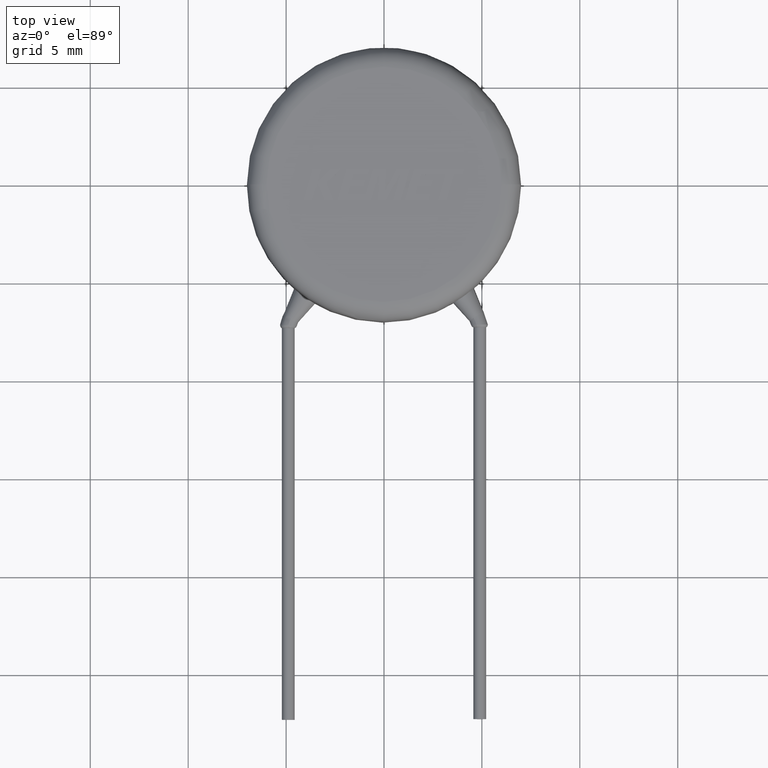
[diagram: clean part render]
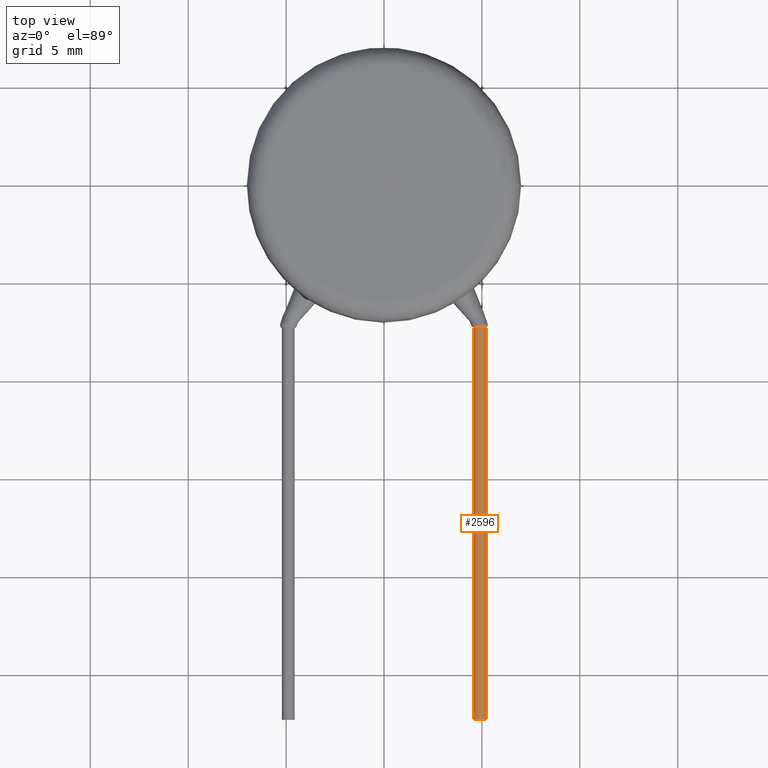
[diagram: same view with one face highlighted and labeled with its STEP entity id]
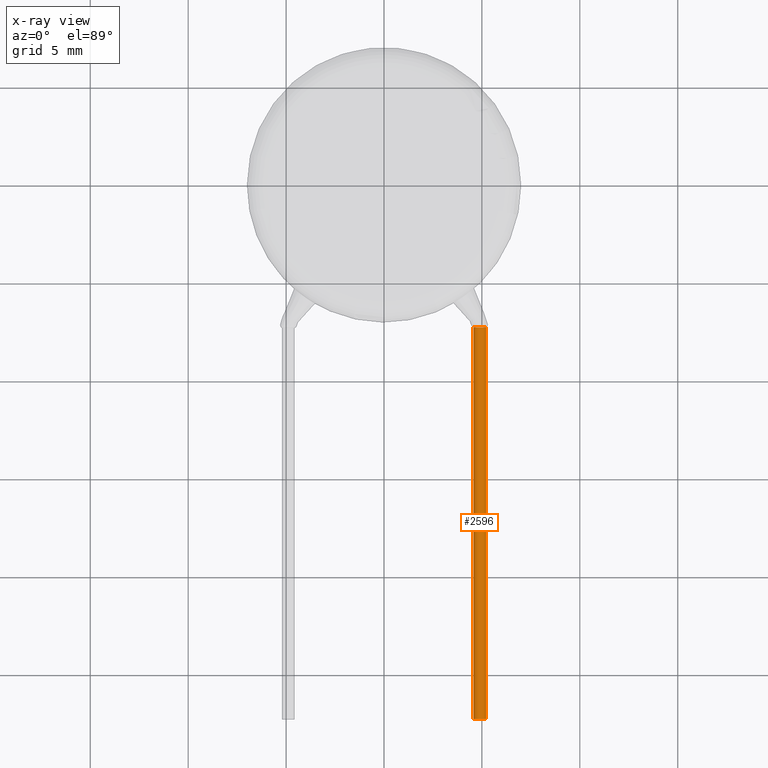
[diagram: x-ray of the same camera — body ghosted, the highlighted face saturated]
A machine part, top view. The second image highlights one B-rep face of the part: STEP entity #2596.
The next image is the same camera in x-ray: the body ghosted, the highlighted face saturated — about 0% of this face is hidden behind the body in this view.
In plain terms, the highlighted cylindrical surface (edge-blend (fillet) strip) has radius 0.325 mm, axis along (0, -1, 0).
Its self-contained STEP definition (entity closure, byte-faithful):
#15 = DIRECTION ( 'NONE',  ( 0.9994723878432226800, 0.0000000000000000000, 0.03247993132638519300 ) ) ;
#225 = DIRECTION ( 'NONE',  ( 1.301042606982605600E-016, -1.000000000000000000, 0.0000000000000000000 ) ) ;
#336 = CARTESIAN_POINT ( 'NONE',  ( 4.766913682338882900, -7.292392426571105100, 3.848838045880926400 ) ) ;
#375 = EDGE_LOOP ( 'NONE', ( #677, #4048, #666, #1076, #2970 ) ) ;
#666 = ORIENTED_EDGE ( 'NONE', *, *, #1841, .T. ) ;
#677 = ORIENTED_EDGE ( 'NONE', *, *, #3409, .T. ) ;
#678 = AXIS2_PLACEMENT_3D ( 'NONE', #1339, #2333, #15 ) ;
#718 = CIRCLE ( 'NONE', #901, 0.3249999999999997900 ) ;
#723 = DIRECTION ( 'NONE',  ( 1.000000000000000000, 0.0000000000000000000, 0.0000000000000000000 ) ) ;
#727 = VERTEX_POINT ( 'NONE', #3855 ) ;
#735 = AXIS2_PLACEMENT_3D ( 'NONE', #3034, #1729, #4037 ) ;
#830 = VECTOR ( 'NONE', #225, 1000.000000000000000 ) ;
#901 = AXIS2_PLACEMENT_3D ( 'NONE', #1410, #2424, #2408 ) ;
#953 = DIRECTION ( 'NONE',  ( 1.301042606982605600E-016, -1.000000000000000000, 0.0000000000000000000 ) ) ;
#1013 = LINE ( 'NONE', #2636, #4029 ) ;
#1020 = CARTESIAN_POINT ( 'NONE',  ( 5.214012070387052100, -7.292392426571105100, 3.547645443654348500 ) ) ;
#1049 = LINE ( 'NONE', #3524, #830 ) ;
#1076 = ORIENTED_EDGE ( 'NONE', *, *, #3128, .F. ) ;
#1120 = VERTEX_POINT ( 'NONE', #3645 ) ;
#1257 = VERTEX_POINT ( 'NONE', #1960 ) ;
#1339 = CARTESIAN_POINT ( 'NONE',  ( 4.889012070387053700, -27.29239242657110500, 3.547645443654348500 ) ) ;
#1410 = CARTESIAN_POINT ( 'NONE',  ( 4.889012070387051900, -7.292392426571105100, 3.547645443654348500 ) ) ;
#1729 = DIRECTION ( 'NONE',  ( -0.0000000000000000000, -1.000000000000000000, -0.0000000000000000000 ) ) ;
#1841 = EDGE_CURVE ( 'NONE', #1257, #727, #1013, .T. ) ;
#1960 = CARTESIAN_POINT ( 'NONE',  ( 4.564012070387052600, -7.292392426571105100, 3.547645443654348500 ) ) ;
#1977 = FACE_OUTER_BOUND ( 'NONE', #375, .T. ) ;
#2333 = DIRECTION ( 'NONE',  ( 5.074066167232159500E-017, -1.000000000000000000, 1.387778780781445400E-017 ) ) ;
#2408 = DIRECTION ( 'NONE',  ( 0.0000000000000000000, 0.0000000000000000000, 1.000000000000000000 ) ) ;
#2424 = DIRECTION ( 'NONE',  ( -0.0000000000000000000, -1.000000000000000000, -0.0000000000000000000 ) ) ;
#2596 = ADVANCED_FACE ( 'NONE', ( #1977 ), #3459, .T. ) ;
#2636 = CARTESIAN_POINT ( 'NONE',  ( 4.564012070387051700, -7.292392426571106000, 3.547645443654348500 ) ) ;
#2711 = EDGE_CURVE ( 'NONE', #3287, #1120, #1049, .T. ) ;
#2867 = CIRCLE ( 'NONE', #678, 0.3249999999999999600 ) ;
#2961 = DIRECTION ( 'NONE',  ( 1.301042606982605600E-016, -1.000000000000000000, 0.0000000000000000000 ) ) ;
#2970 = ORIENTED_EDGE ( 'NONE', *, *, #2711, .F. ) ;
#3034 = CARTESIAN_POINT ( 'NONE',  ( 4.889012070387051900, -7.292392426571105100, 3.547645443654348500 ) ) ;
#3062 = VERTEX_POINT ( 'NONE', #336 ) ;
#3128 = EDGE_CURVE ( 'NONE', #1120, #727, #2867, .T. ) ;
#3241 = CARTESIAN_POINT ( 'NONE',  ( 4.889012070387051000, -7.292392426571106000, 3.547645443654348500 ) ) ;
#3287 = VERTEX_POINT ( 'NONE', #1020 ) ;
#3409 = EDGE_CURVE ( 'NONE', #3287, #3062, #718, .T. ) ;
#3459 = CYLINDRICAL_SURFACE ( 'NONE', #3598, 0.3249999999999997900 ) ;
#3524 = CARTESIAN_POINT ( 'NONE',  ( 5.214012070387051200, -7.292392426571106000, 3.547645443654348500 ) ) ;
#3527 = EDGE_CURVE ( 'NONE', #3062, #1257, #3544, .T. ) ;
#3544 = CIRCLE ( 'NONE', #735, 0.3249999999999997900 ) ;
#3598 = AXIS2_PLACEMENT_3D ( 'NONE', #3241, #2961, #723 ) ;
#3645 = CARTESIAN_POINT ( 'NONE',  ( 5.214012070387053800, -27.29239242657110500, 3.547645443654348500 ) ) ;
#3855 = CARTESIAN_POINT ( 'NONE',  ( 4.564012070387054400, -27.29239242657110500, 3.547645443654348500 ) ) ;
#4029 = VECTOR ( 'NONE', #953, 1000.000000000000000 ) ;
#4037 = DIRECTION ( 'NONE',  ( 0.0000000000000000000, 0.0000000000000000000, 1.000000000000000000 ) ) ;
#4048 = ORIENTED_EDGE ( 'NONE', *, *, #3527, .T. ) ;